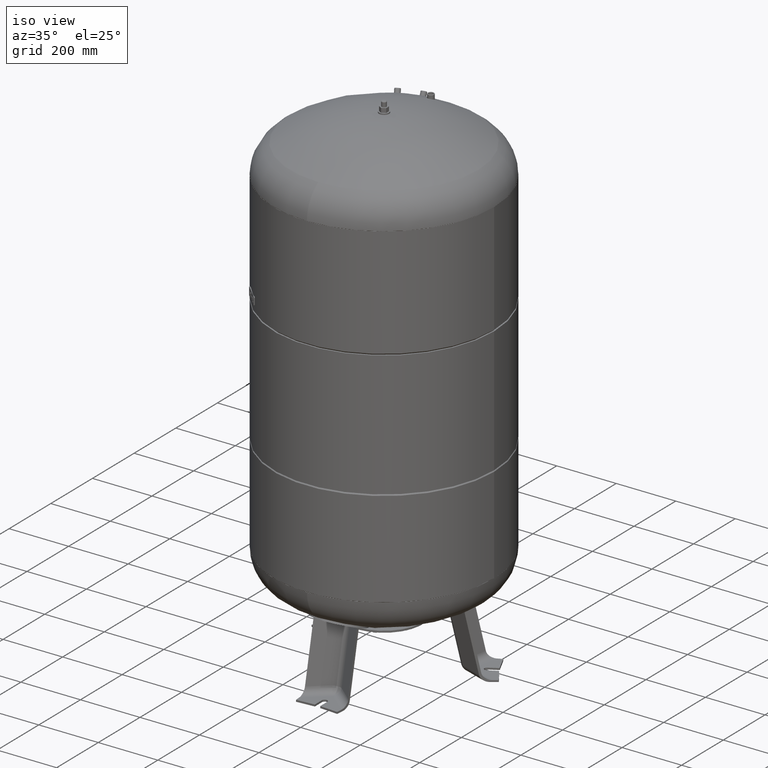
[diagram: clean part render]
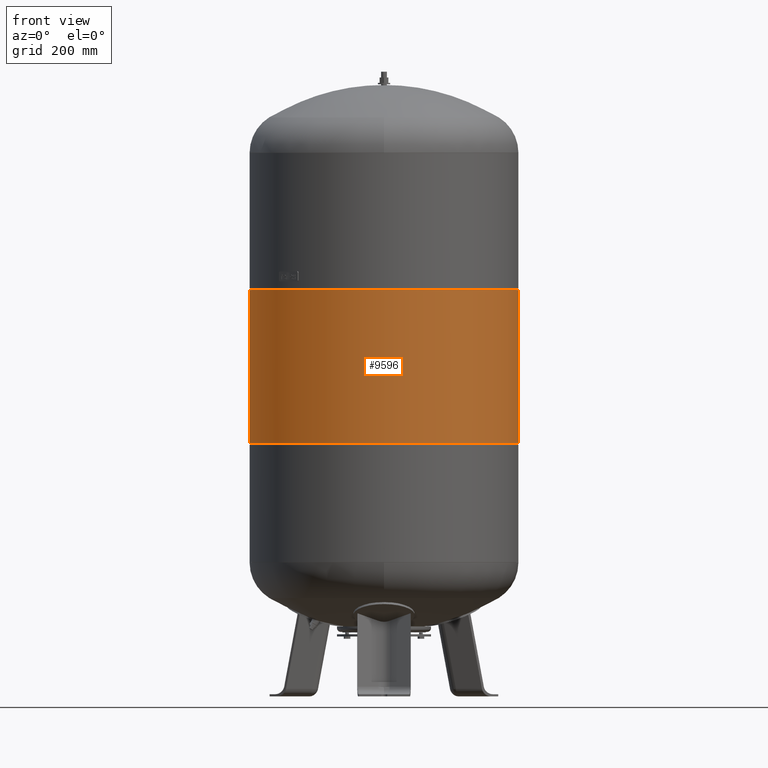
[diagram: tour spotlight — one face highlighted and labeled with its STEP entity id]
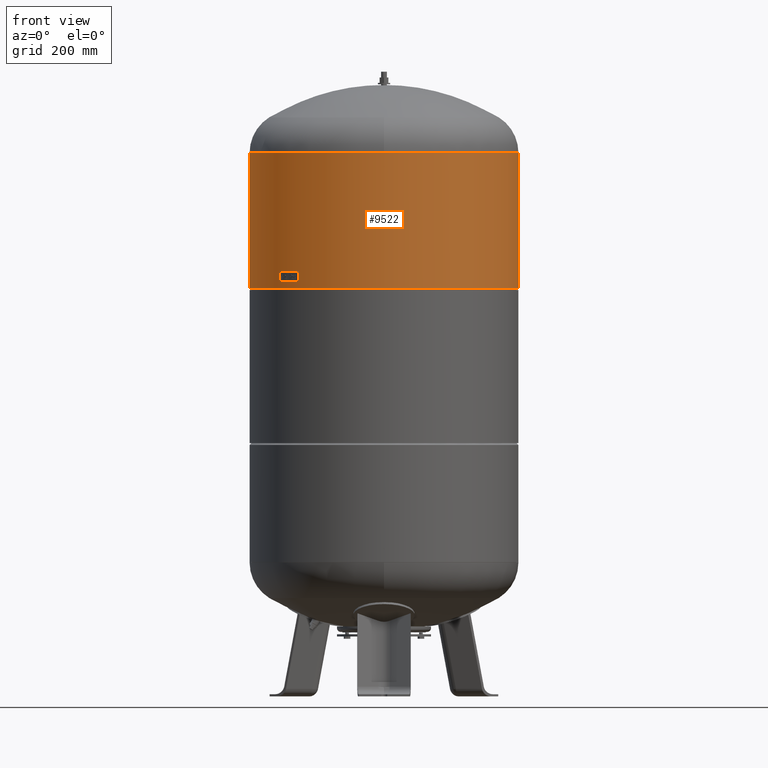
[diagram: tour spotlight — one face highlighted and labeled with its STEP entity id]
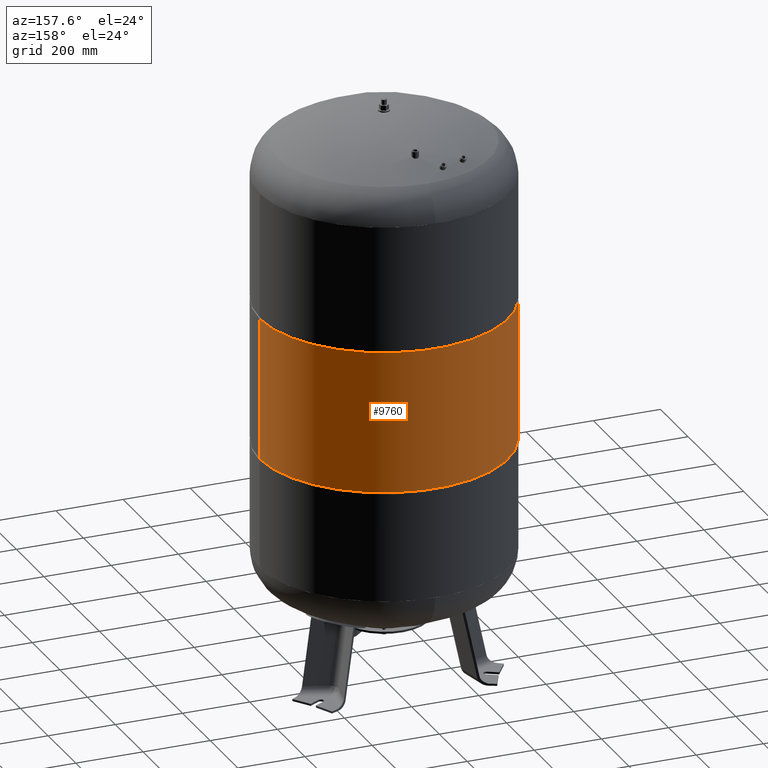
[diagram: tour spotlight — one face highlighted and labeled with its STEP entity id]
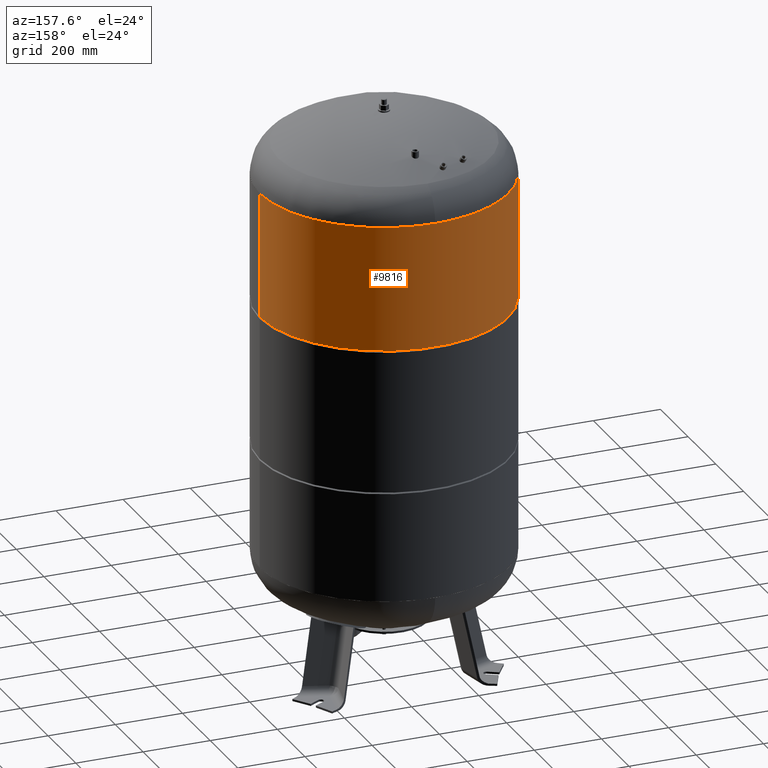
[diagram: tour spotlight — one face highlighted and labeled with its STEP entity id]
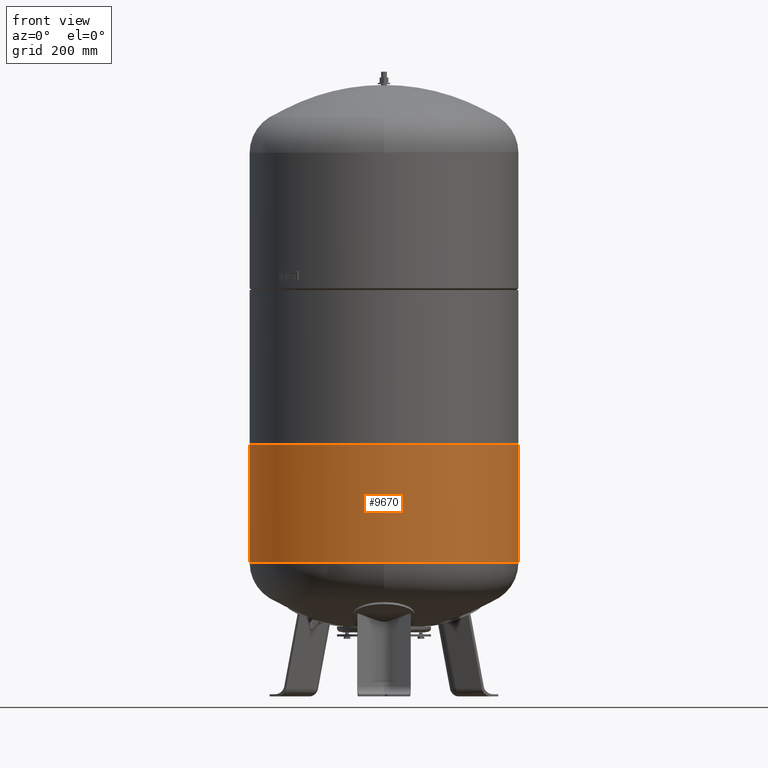
[diagram: tour spotlight — one face highlighted and labeled with its STEP entity id]
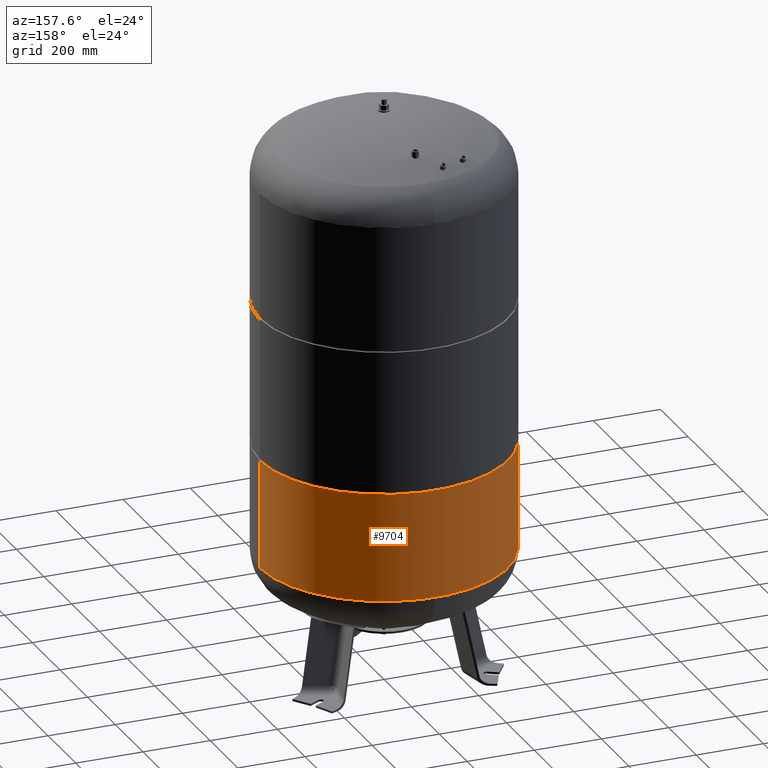
[diagram: tour spotlight — one face highlighted and labeled with its STEP entity id]
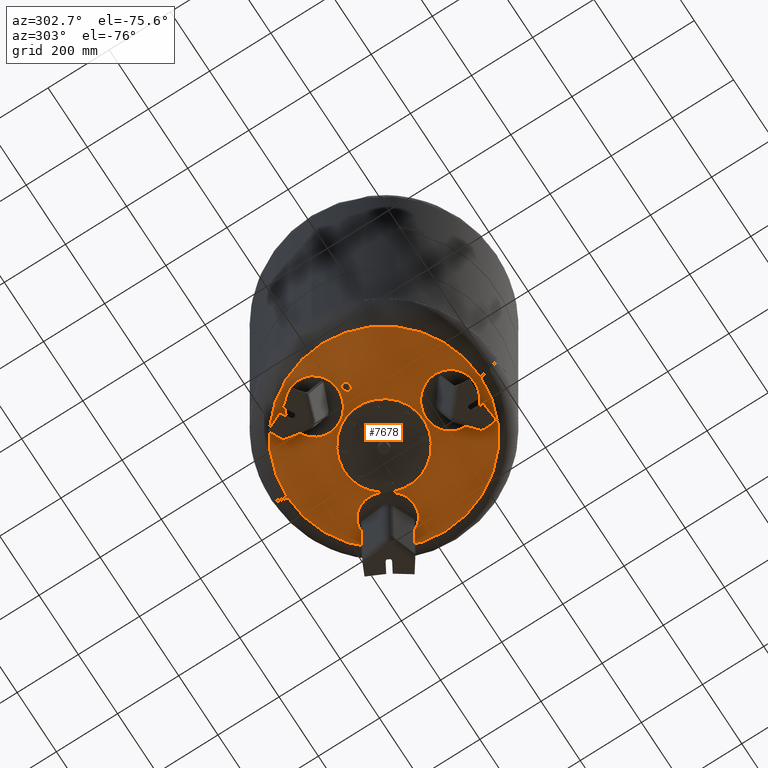
[diagram: tour spotlight — one face highlighted and labeled with its STEP entity id]
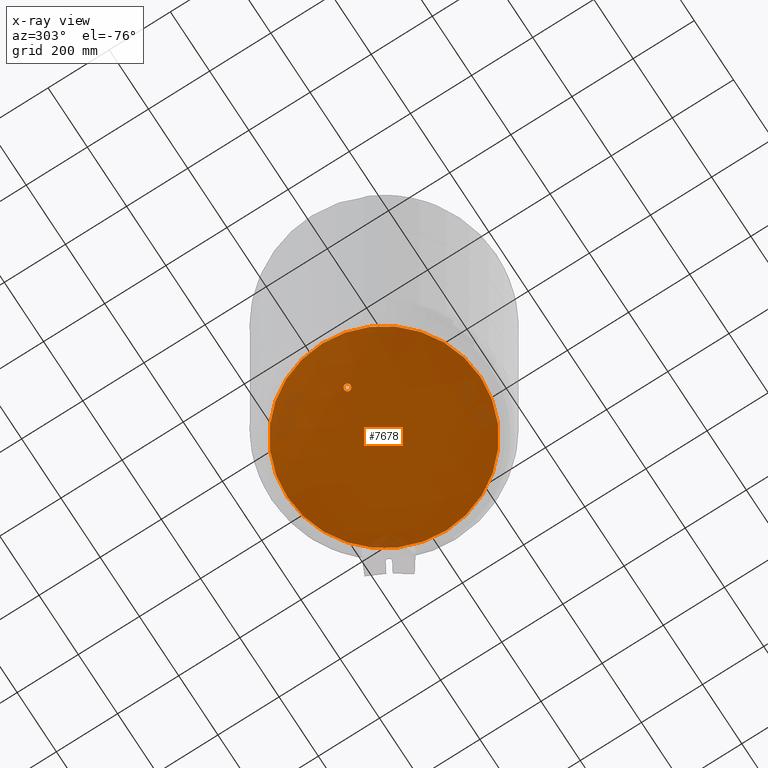
[diagram: x-ray of the same camera — body ghosted, this tour face saturated]
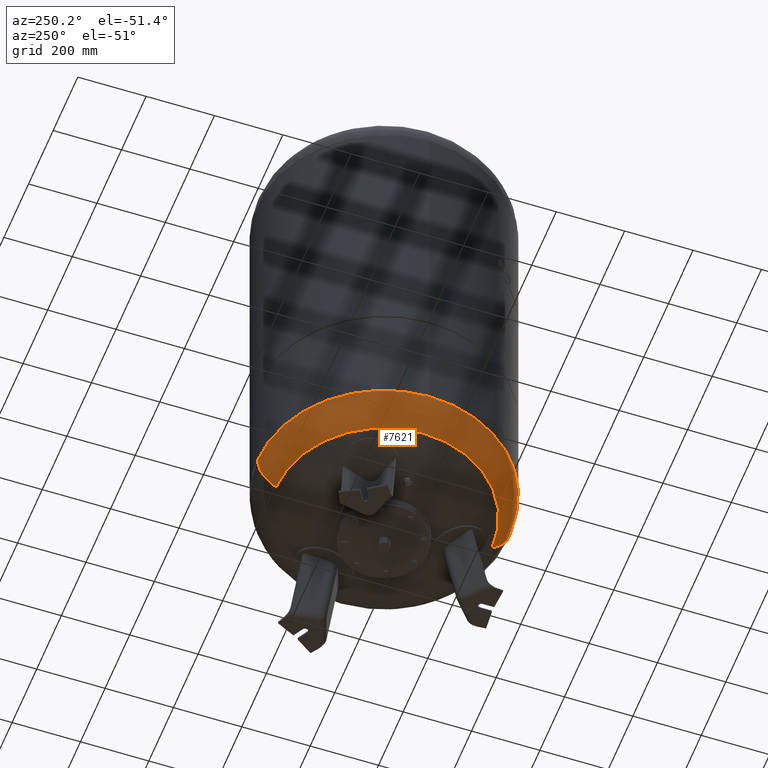
[diagram: tour spotlight — one face highlighted and labeled with its STEP entity id]
A machine part: a face-by-face anatomy tour. The part has 450 B-rep faces; the first image is the clean iso view, then the 8 largest visible faces are spotlighted one at a time (largest first), each with its STEP entity span.

Face 1 — front view, entity #9596. In plain terms, the highlighted cylindrical surface (partial cylindrical patch) has radius 370 mm, axis along (0, 0, 1).
Definition (entity closure, byte-faithful):
#9555=CARTESIAN_POINT('',(-7.289513E-016,0.0,907.885609846773600));
#9556=DIRECTION('',(2.961484E-017,0.0,1.0));
#9557=DIRECTION('',(1.0,0.0,0.0));
#9558=AXIS2_PLACEMENT_3D('',#9555,#9556,#9557);
#9559=CYLINDRICAL_SURFACE('',#9558,370.000000000001140);
#9560=CARTESIAN_POINT('',(369.999999999999720,0.0,1118.666666666666500));
#9561=VERTEX_POINT('',#9560);
#9562=CARTESIAN_POINT('',(370.000000000002610,0.0,697.104553026880580));
#9563=VERTEX_POINT('',#9562);
#9564=CARTESIAN_POINT('',(369.999999999999720,0.0,1118.666666666666500));
#9565=DIRECTION('',(0.0,0.0,-1.0));
#9566=VECTOR('',#9565,421.562113639785930);
#9567=LINE('',#9564,#9566);
#9568=EDGE_CURVE('',#9561,#9563,#9567,.T.);
#9569=ORIENTED_EDGE('',*,*,#9568,.F.);
#9570=CARTESIAN_POINT('',(-370.000000000001140,-4.531044E-014,1118.666666666666500));
#9571=VERTEX_POINT('',#9570);
#9572=CARTESIAN_POINT('',(5.513297E-015,0.0,1118.666666666666500));
#9573=DIRECTION('',(0.0,0.0,1.0));
#9574=DIRECTION('',(1.0,0.0,0.0));
#9575=AXIS2_PLACEMENT_3D('',#9572,#9573,#9574);
#9576=CIRCLE('',#9575,369.999999999999720);
#9577=EDGE_CURVE('',#9571,#9561,#9576,.T.);
#9578=ORIENTED_EDGE('',*,*,#9577,.F.);
#9579=CARTESIAN_POINT('',(-370.000000000001140,-4.531044E-014,697.104553026880470));
#9580=VERTEX_POINT('',#9579);
#9581=CARTESIAN_POINT('',(-370.000000000001140,-4.531044E-014,1118.666666666666500));
#9582=DIRECTION('',(0.0,0.0,-1.0));
#9583=VECTOR('',#9582,421.562113639786050);
#9584=LINE('',#9581,#9583);
#9585=EDGE_CURVE('',#9571,#9580,#9584,.T.);
#9586=ORIENTED_EDGE('',*,*,#9585,.T.);
#9587=CARTESIAN_POINT('',(-6.971199E-015,0.0,697.104553026880470));
#9588=DIRECTION('',(0.0,0.0,1.0));
#9589=DIRECTION('',(1.0,0.0,0.0));
#9590=AXIS2_PLACEMENT_3D('',#9587,#9588,#9589);
#9591=CIRCLE('',#9590,370.000000000002610);
#9592=EDGE_CURVE('',#9580,#9563,#9591,.T.);
#9593=ORIENTED_EDGE('',*,*,#9592,.T.);
#9594=EDGE_LOOP('',(#9569,#9578,#9586,#9593));
#9595=FACE_OUTER_BOUND('',#9594,.T.);
#9596=ADVANCED_FACE('',(#9595),#9559,.T.);

Face 2 — front view, entity #9522. In plain terms, the highlighted cylindrical surface (partial cylindrical patch) has radius 370 mm, axis along (0, 0, 1).
Definition (entity closure, byte-faithful):
#9481=CARTESIAN_POINT('',(1.117467E-014,0.0,1309.833333333333500));
#9482=DIRECTION('',(2.961484E-017,0.0,1.0));
#9483=DIRECTION('',(1.0,0.0,0.0));
#9484=AXIS2_PLACEMENT_3D('',#9481,#9482,#9483);
#9485=CYLINDRICAL_SURFACE('',#9484,369.999999999999890);
#9486=CARTESIAN_POINT('',(370.0,0.0,1496.0));
#9487=VERTEX_POINT('',#9486);
#9488=CARTESIAN_POINT('',(369.999999999999720,0.0,1123.666666666666500));
#9489=VERTEX_POINT('',#9488);
#9490=CARTESIAN_POINT('',(370.0,0.0,1496.0));
#9491=DIRECTION('',(0.0,0.0,-1.0));
#9492=VECTOR('',#9491,372.333333333333480);
#9493=LINE('',#9490,#9492);
#9494=EDGE_CURVE('',#9487,#9489,#9493,.T.);
#9495=ORIENTED_EDGE('',*,*,#9494,.F.);
#9496=CARTESIAN_POINT('',(-369.999999999999890,-4.531044E-014,1496.0));
#9497=VERTEX_POINT('',#9496);
#9498=CARTESIAN_POINT('',(1.668796E-014,0.0,1496.0));
#9499=DIRECTION('',(0.0,0.0,1.0));
#9500=DIRECTION('',(1.0,0.0,0.0));
#9501=AXIS2_PLACEMENT_3D('',#9498,#9499,#9500);
#9502=CIRCLE('',#9501,370.0);
#9503=EDGE_CURVE('',#9497,#9487,#9502,.T.);
#9504=ORIENTED_EDGE('',*,*,#9503,.F.);
#9505=CARTESIAN_POINT('',(-369.999999999999720,-4.531044E-014,1123.666666666666500));
#9506=VERTEX_POINT('',#9505);
#9507=CARTESIAN_POINT('',(-369.999999999999890,-4.531044E-014,1496.0));
#9508=DIRECTION('',(0.0,0.0,-1.0));
#9509=VECTOR('',#9508,372.333333333333480);
#9510=LINE('',#9507,#9509);
#9511=EDGE_CURVE('',#9497,#9506,#9510,.T.);
#9512=ORIENTED_EDGE('',*,*,#9511,.T.);
#9513=CARTESIAN_POINT('',(5.661371E-015,0.0,1123.666666666666500));
#9514=DIRECTION('',(0.0,0.0,1.0));
#9515=DIRECTION('',(1.0,0.0,0.0));
#9516=AXIS2_PLACEMENT_3D('',#9513,#9514,#9515);
#9517=CIRCLE('',#9516,369.999999999999720);
#9518=EDGE_CURVE('',#9506,#9489,#9517,.T.);
#9519=ORIENTED_EDGE('',*,*,#9518,.T.);
#9520=EDGE_LOOP('',(#9495,#9504,#9512,#9519));
#9521=FACE_OUTER_BOUND('',#9520,.T.);
#9522=ADVANCED_FACE('',(#9521),#9485,.T.);

Face 3 — auxiliary view, entity #9760. In plain terms, the highlighted cylindrical surface (partial cylindrical patch) has radius 370 mm, axis along (0, 0, 1).
Definition (entity closure, byte-faithful):
#9560=CARTESIAN_POINT('',(369.999999999999720,0.0,1118.666666666666500));
#9561=VERTEX_POINT('',#9560);
#9562=CARTESIAN_POINT('',(370.000000000002610,0.0,697.104553026880580));
#9563=VERTEX_POINT('',#9562);
#9564=CARTESIAN_POINT('',(369.999999999999720,0.0,1118.666666666666500));
#9565=DIRECTION('',(0.0,0.0,-1.0));
#9566=VECTOR('',#9565,421.562113639785930);
#9567=LINE('',#9564,#9566);
#9568=EDGE_CURVE('',#9561,#9563,#9567,.T.);
#9570=CARTESIAN_POINT('',(-370.000000000001140,-4.531044E-014,1118.666666666666500));
#9571=VERTEX_POINT('',#9570);
#9579=CARTESIAN_POINT('',(-370.000000000001140,-4.531044E-014,697.104553026880470));
#9580=VERTEX_POINT('',#9579);
#9581=CARTESIAN_POINT('',(-370.000000000001140,-4.531044E-014,1118.666666666666500));
#9582=DIRECTION('',(0.0,0.0,-1.0));
#9583=VECTOR('',#9582,421.562113639786050);
#9584=LINE('',#9581,#9583);
#9585=EDGE_CURVE('',#9571,#9580,#9584,.T.);
#9728=CARTESIAN_POINT('',(-6.971199E-015,0.0,697.104553026880470));
#9729=DIRECTION('',(0.0,0.0,1.0));
#9730=DIRECTION('',(1.0,0.0,0.0));
#9731=AXIS2_PLACEMENT_3D('',#9728,#9729,#9730);
#9732=CIRCLE('',#9731,370.000000000002610);
#9733=EDGE_CURVE('',#9563,#9580,#9732,.T.);
#9743=CARTESIAN_POINT('',(-7.289513E-016,0.0,907.885609846773600));
#9744=DIRECTION('',(2.961484E-017,0.0,1.0));
#9745=DIRECTION('',(1.0,0.0,0.0));
#9746=AXIS2_PLACEMENT_3D('',#9743,#9744,#9745);
#9747=CYLINDRICAL_SURFACE('',#9746,370.000000000001140);
#9748=ORIENTED_EDGE('',*,*,#9568,.T.);
#9749=ORIENTED_EDGE('',*,*,#9733,.T.);
#9750=ORIENTED_EDGE('',*,*,#9585,.F.);
#9751=CARTESIAN_POINT('',(5.513297E-015,0.0,1118.666666666666500));
#9752=DIRECTION('',(0.0,0.0,1.0));
#9753=DIRECTION('',(1.0,0.0,0.0));
#9754=AXIS2_PLACEMENT_3D('',#9751,#9752,#9753);
#9755=CIRCLE('',#9754,369.999999999999720);
#9756=EDGE_CURVE('',#9561,#9571,#9755,.T.);
#9757=ORIENTED_EDGE('',*,*,#9756,.F.);
#9758=EDGE_LOOP('',(#9748,#9749,#9750,#9757));
#9759=FACE_OUTER_BOUND('',#9758,.T.);
#9760=ADVANCED_FACE('',(#9759),#9747,.T.);

Face 4 — auxiliary view, entity #9816. In plain terms, the highlighted cylindrical surface (partial cylindrical patch) has radius 370 mm, axis along (0, 0, 1).
Definition (entity closure, byte-faithful):
#9486=CARTESIAN_POINT('',(370.0,0.0,1496.0));
#9487=VERTEX_POINT('',#9486);
#9488=CARTESIAN_POINT('',(369.999999999999720,0.0,1123.666666666666500));
#9489=VERTEX_POINT('',#9488);
#9490=CARTESIAN_POINT('',(370.0,0.0,1496.0));
#9491=DIRECTION('',(0.0,0.0,-1.0));
#9492=VECTOR('',#9491,372.333333333333480);
#9493=LINE('',#9490,#9492);
#9494=EDGE_CURVE('',#9487,#9489,#9493,.T.);
#9496=CARTESIAN_POINT('',(-369.999999999999890,-4.531044E-014,1496.0));
#9497=VERTEX_POINT('',#9496);
#9505=CARTESIAN_POINT('',(-369.999999999999720,-4.531044E-014,1123.666666666666500));
#9506=VERTEX_POINT('',#9505);
#9507=CARTESIAN_POINT('',(-369.999999999999890,-4.531044E-014,1496.0));
#9508=DIRECTION('',(0.0,0.0,-1.0));
#9509=VECTOR('',#9508,372.333333333333480);
#9510=LINE('',#9507,#9509);
#9511=EDGE_CURVE('',#9497,#9506,#9510,.T.);
#9789=CARTESIAN_POINT('',(5.661371E-015,0.0,1123.666666666666500));
#9790=DIRECTION('',(0.0,0.0,1.0));
#9791=DIRECTION('',(1.0,0.0,0.0));
#9792=AXIS2_PLACEMENT_3D('',#9789,#9790,#9791);
#9793=CIRCLE('',#9792,369.999999999999720);
#9794=EDGE_CURVE('',#9489,#9506,#9793,.T.);
#9799=CARTESIAN_POINT('',(1.117467E-014,0.0,1309.833333333333500));
#9800=DIRECTION('',(2.961484E-017,0.0,1.0));
#9801=DIRECTION('',(1.0,0.0,0.0));
#9802=AXIS2_PLACEMENT_3D('',#9799,#9800,#9801);
#9803=CYLINDRICAL_SURFACE('',#9802,369.999999999999890);
#9804=ORIENTED_EDGE('',*,*,#9494,.T.);
#9805=ORIENTED_EDGE('',*,*,#9794,.T.);
#9806=ORIENTED_EDGE('',*,*,#9511,.F.);
#9807=CARTESIAN_POINT('',(1.668796E-014,0.0,1496.0));
#9808=DIRECTION('',(0.0,0.0,1.0));
#9809=DIRECTION('',(1.0,0.0,0.0));
#9810=AXIS2_PLACEMENT_3D('',#9807,#9808,#9809);
#9811=CIRCLE('',#9810,370.0);
#9812=EDGE_CURVE('',#9487,#9497,#9811,.T.);
#9813=ORIENTED_EDGE('',*,*,#9812,.F.);
#9814=EDGE_LOOP('',(#9804,#9805,#9806,#9813));
#9815=FACE_OUTER_BOUND('',#9814,.T.);
#9816=ADVANCED_FACE('',(#9815),#9803,.T.);

Face 5 — front view, entity #9670. In plain terms, the highlighted cylindrical surface (partial cylindrical patch) has radius 370 mm, axis along (0, 0, 1).
Definition (entity closure, byte-faithful):
#9604=CARTESIAN_POINT('',(369.999999999997730,0.0,692.104553026880470));
#9605=VERTEX_POINT('',#9604);
#9621=CARTESIAN_POINT('',(-369.999999999998860,-4.531044E-014,692.104553026880470));
#9622=VERTEX_POINT('',#9621);
#9629=CARTESIAN_POINT('',(-7.119274E-015,0.0,692.104553026880470));
#9630=DIRECTION('',(0.0,0.0,1.0));
#9631=DIRECTION('',(1.0,0.0,0.0));
#9632=AXIS2_PLACEMENT_3D('',#9629,#9630,#9631);
#9633=CIRCLE('',#9632,369.999999999997730);
#9634=EDGE_CURVE('',#9622,#9605,#9633,.T.);
#9639=CARTESIAN_POINT('',(-1.190362E-014,0.0,530.552276513440120));
#9640=DIRECTION('',(2.961484E-017,0.0,1.0));
#9641=DIRECTION('',(1.0,0.0,0.0));
#9642=AXIS2_PLACEMENT_3D('',#9639,#9640,#9641);
#9643=CYLINDRICAL_SURFACE('',#9642,369.999999999998860);
#9644=CARTESIAN_POINT('',(369.999999999999940,0.0,369.0));
#9645=VERTEX_POINT('',#9644);
#9646=CARTESIAN_POINT('',(369.999999999997730,0.0,692.104553026880470));
#9647=DIRECTION('',(0.0,0.0,-1.0));
#9648=VECTOR('',#9647,323.104553026880470);
#9649=LINE('',#9646,#9648);
#9650=EDGE_CURVE('',#9605,#9645,#9649,.T.);
#9651=ORIENTED_EDGE('',*,*,#9650,.F.);
#9652=ORIENTED_EDGE('',*,*,#9634,.F.);
#9653=CARTESIAN_POINT('',(-369.999999999998860,-4.531044E-014,369.0));
#9654=VERTEX_POINT('',#9653);
#9655=CARTESIAN_POINT('',(-369.999999999998860,-4.531044E-014,692.104553026880470));
#9656=DIRECTION('',(0.0,0.0,-1.0));
#9657=VECTOR('',#9656,323.104553026880470);
#9658=LINE('',#9655,#9657);
#9659=EDGE_CURVE('',#9622,#9654,#9658,.T.);
#9660=ORIENTED_EDGE('',*,*,#9659,.T.);
#9661=CARTESIAN_POINT('',(-1.668796E-014,0.0,369.0));
#9662=DIRECTION('',(0.0,0.0,1.0));
#9663=DIRECTION('',(1.0,0.0,0.0));
#9664=AXIS2_PLACEMENT_3D('',#9661,#9662,#9663);
#9665=CIRCLE('',#9664,369.999999999999940);
#9666=EDGE_CURVE('',#9654,#9645,#9665,.T.);
#9667=ORIENTED_EDGE('',*,*,#9666,.T.);
#9668=EDGE_LOOP('',(#9651,#9652,#9660,#9667));
#9669=FACE_OUTER_BOUND('',#9668,.T.);
#9670=ADVANCED_FACE('',(#9669),#9643,.T.);

Face 6 — auxiliary view, entity #9704. In plain terms, the highlighted cylindrical surface (partial cylindrical patch) has radius 370 mm, axis along (0, 0, 1).
Definition (entity closure, byte-faithful):
#9604=CARTESIAN_POINT('',(369.999999999997730,0.0,692.104553026880470));
#9605=VERTEX_POINT('',#9604);
#9621=CARTESIAN_POINT('',(-369.999999999998860,-4.531044E-014,692.104553026880470));
#9622=VERTEX_POINT('',#9621);
#9644=CARTESIAN_POINT('',(369.999999999999940,0.0,369.0));
#9645=VERTEX_POINT('',#9644);
#9646=CARTESIAN_POINT('',(369.999999999997730,0.0,692.104553026880470));
#9647=DIRECTION('',(0.0,0.0,-1.0));
#9648=VECTOR('',#9647,323.104553026880470);
#9649=LINE('',#9646,#9648);
#9650=EDGE_CURVE('',#9605,#9645,#9649,.T.);
#9653=CARTESIAN_POINT('',(-369.999999999998860,-4.531044E-014,369.0));
#9654=VERTEX_POINT('',#9653);
#9655=CARTESIAN_POINT('',(-369.999999999998860,-4.531044E-014,692.104553026880470));
#9656=DIRECTION('',(0.0,0.0,-1.0));
#9657=VECTOR('',#9656,323.104553026880470);
#9658=LINE('',#9655,#9657);
#9659=EDGE_CURVE('',#9622,#9654,#9658,.T.);
#9676=CARTESIAN_POINT('',(-1.668796E-014,0.0,369.0));
#9677=DIRECTION('',(0.0,0.0,1.0));
#9678=DIRECTION('',(1.0,0.0,0.0));
#9679=AXIS2_PLACEMENT_3D('',#9676,#9677,#9678);
#9680=CIRCLE('',#9679,369.999999999999940);
#9681=EDGE_CURVE('',#9645,#9654,#9680,.T.);
#9687=CARTESIAN_POINT('',(-1.190362E-014,0.0,530.552276513440120));
#9688=DIRECTION('',(2.961484E-017,0.0,1.0));
#9689=DIRECTION('',(1.0,0.0,0.0));
#9690=AXIS2_PLACEMENT_3D('',#9687,#9688,#9689);
#9691=CYLINDRICAL_SURFACE('',#9690,369.999999999998860);
#9692=ORIENTED_EDGE('',*,*,#9650,.T.);
#9693=ORIENTED_EDGE('',*,*,#9681,.T.);
#9694=ORIENTED_EDGE('',*,*,#9659,.F.);
#9695=CARTESIAN_POINT('',(-7.119274E-015,0.0,692.104553026880470));
#9696=DIRECTION('',(0.0,0.0,1.0));
#9697=DIRECTION('',(1.0,0.0,0.0));
#9698=AXIS2_PLACEMENT_3D('',#9695,#9696,#9697);
#9699=CIRCLE('',#9698,369.999999999997730);
#9700=EDGE_CURVE('',#9605,#9622,#9699,.T.);
#9701=ORIENTED_EDGE('',*,*,#9700,.F.);
#9702=EDGE_LOOP('',(#9692,#9693,#9694,#9701));
#9703=FACE_OUTER_BOUND('',#9702,.T.);
#9704=ADVANCED_FACE('',(#9703),#9691,.T.);

Face 7 — auxiliary view, entity #7678. An x-ray twin of the same camera follows (body ghosted, this face saturated) — the face is partly hidden behind the body. In plain terms, the highlighted spherical surface has radius 594 mm.
Definition (entity closure, byte-faithful):
#7064=CARTESIAN_POINT('',(-186.475898480732810,10.649999999999997,210.130053305016530));
#7065=VERTEX_POINT('',#7064);
#7081=CARTESIAN_POINT('',(-186.475898480732720,-10.650000000000007,210.130053305016530));
#7082=VERTEX_POINT('',#7081);
#7089=CARTESIAN_POINT('',(-186.475898480732720,-10.650000000000007,210.130053305016530));
#7090=CARTESIAN_POINT('',(-187.124860883245160,-10.650000000000007,210.344669898431450));
#7091=CARTESIAN_POINT('',(-187.796419153283950,-10.585897257729055,210.566811580146290));
#7092=CARTESIAN_POINT('',(-189.133346046879210,-10.315197843523979,211.009157990052330));
#7093=CARTESIAN_POINT('',(-189.798725137413130,-10.108658305297702,211.229366045118810));
#7094=CARTESIAN_POINT('',(-191.076019149340080,-9.561247992594435,211.652185101280420));
#7095=CARTESIAN_POINT('',(-191.688913967560210,-9.219951288830538,211.855120108877880));
#7096=CARTESIAN_POINT('',(-192.823245490695570,-8.429330288861298,212.230780821028390));
#7097=CARTESIAN_POINT('',(-193.344645356914100,-7.979947097098358,212.403493806613260));
#7098=CARTESIAN_POINT('',(-194.257487015804490,-7.030422985901732,212.705916681357510));
#7099=CARTESIAN_POINT('',(-194.682073986333620,-6.499959822582402,212.846606772842930));
#7100=CARTESIAN_POINT('',(-195.431782062258290,-5.343773011801500,213.095059043302630));
#7101=CARTESIAN_POINT('',(-195.756940428860790,-4.718076059811918,213.202833012730140));
#7102=CARTESIAN_POINT('',(-196.279773371397030,-3.411750880367439,213.376139475025640));
#7103=CARTESIAN_POINT('',(-196.477873122917200,-2.730044237096569,213.441812530799580));
#7104=CARTESIAN_POINT('',(-196.737912556741290,-1.358119939518624,213.528021592298700));
#7105=CARTESIAN_POINT('',(-196.799795716716970,-0.667890388706037,213.548538760171940));
#7106=CARTESIAN_POINT('',(-196.799795716717030,0.667890388705907,213.548538760171940));
#7107=CARTESIAN_POINT('',(-196.737912556741290,1.358119939518490,213.528021592298700));
#7108=CARTESIAN_POINT('',(-196.477873122917260,2.730044237096433,213.441812530799610));
#7109=CARTESIAN_POINT('',(-196.279773371397030,3.411750880367301,213.376139475025750));
#7110=CARTESIAN_POINT('',(-195.756940428860790,4.718076059811795,213.202833012730200));
#7111=CARTESIAN_POINT('',(-195.431782062258380,5.343773011801374,213.095059043302630));
#7112=CARTESIAN_POINT('',(-194.682073986333710,6.499959822582289,212.846606772842900));
#7113=CARTESIAN_POINT('',(-194.257487015804540,7.030422985901635,212.705916681357510));
#7114=CARTESIAN_POINT('',(-193.344645356914100,7.979947097098268,212.403493806613260));
#7115=CARTESIAN_POINT('',(-192.823245490695570,8.429330288861236,212.230780821028500));
#7116=CARTESIAN_POINT('',(-191.688913967560240,9.219951288830469,211.855120108878000));
#7117=CARTESIAN_POINT('',(-191.076019149340110,9.561247992594385,211.652185101280510));
#7118=CARTESIAN_POINT('',(-189.798725137413190,10.108658305297656,211.229366045118920));
#7119=CARTESIAN_POINT('',(-189.133346046879300,10.315197843523951,211.009157990052300));
#7120=CARTESIAN_POINT('',(-187.796419153284030,10.585897257729030,210.566811580146290));
#7121=CARTESIAN_POINT('',(-187.124860883245220,10.649999999999993,210.344669898431500));
#7122=CARTESIAN_POINT('',(-186.475898480732780,10.649999999999997,210.130053305016590));
#7123=B_SPLINE_CURVE_WITH_KNOTS('',3,(#7089,#7090,#7091,#7092,#7093,#7094,#7095,#7096,#7097,#7098,#7099,#7100,#7101,#7102,#7103,#7104,#7105,#7106,#7107,#7108,#7109,#7110,#7111,#7112,#7113,#7114,#7115,#7116,#7117,#7118,#7119,#7120,#7121,#7122),.UNSPECIFIED.,.F.,.U.,(4,2,2,2,2,2,2,2,2,2,2,2,2,2,2,2,4),(32.436275591715777,34.486863882522528,36.537452173329278,38.588040464136029,40.638628754942779,42.642299921060683,44.645971087178594,46.649642253296506,48.653313419414417,50.656984585532335,52.660655751650253,54.664326917768172,56.667998083886090,58.718586374692833,60.769174665499570,62.819762956306306,64.870351247113049),.UNSPECIFIED.);
#7124=EDGE_CURVE('',#7082,#7065,#7123,.T.);
#7577=CARTESIAN_POINT('',(0.0,-315.931034482758610,270.985505725079410));
#7578=VERTEX_POINT('',#7577);
#7594=CARTESIAN_POINT('',(-3.868912E-014,315.931034482758610,270.985505725079630));
#7595=VERTEX_POINT('',#7594);
#7603=CARTESIAN_POINT('',(-315.931034482758610,-1.671377E-014,270.985505725079520));
#7604=VERTEX_POINT('',#7603);
#7605=CARTESIAN_POINT('',(0.0,-1.671377E-014,270.985505725079520));
#7606=DIRECTION('',(0.0,0.0,1.0));
#7607=DIRECTION('',(-1.0,0.0,0.0));
#7608=AXIS2_PLACEMENT_3D('',#7605,#7606,#7607);
#7609=CIRCLE('',#7608,315.931034482758610);
#7610=EDGE_CURVE('',#7595,#7604,#7609,.T.);
#7612=CARTESIAN_POINT('',(0.0,-1.671377E-014,270.985505725079520));
#7613=DIRECTION('',(0.0,0.0,1.0));
#7614=DIRECTION('',(-1.0,0.0,0.0));
#7615=AXIS2_PLACEMENT_3D('',#7612,#7613,#7614);
#7616=CIRCLE('',#7615,315.931034482758610);
#7617=EDGE_CURVE('',#7604,#7578,#7616,.T.);
#7622=CARTESIAN_POINT('',(0.0,-1.091160E-013,774.0));
#7623=DIRECTION('',(0.0,-1.0,0.0));
#7624=DIRECTION('',(1.0,0.0,0.0));
#7625=AXIS2_PLACEMENT_3D('',#7622,#7623,#7624);
#7626=SPHERICAL_SURFACE('',#7625,594.0);
#7627=ORIENTED_EDGE('',*,*,#7617,.F.);
#7628=ORIENTED_EDGE('',*,*,#7610,.F.);
#7629=CARTESIAN_POINT('',(0.0,-1.671377E-014,270.985505725079520));
#7630=DIRECTION('',(0.0,0.0,1.0));
#7631=DIRECTION('',(-1.0,0.0,0.0));
#7632=AXIS2_PLACEMENT_3D('',#7629,#7630,#7631);
#7633=CIRCLE('',#7632,315.931034482758610);
#7634=EDGE_CURVE('',#7578,#7595,#7633,.T.);
#7635=ORIENTED_EDGE('',*,*,#7634,.F.);
#7636=EDGE_LOOP('',(#7627,#7628,#7635));
#7637=FACE_OUTER_BOUND('',#7636,.T.);
#7638=CARTESIAN_POINT('',(-186.475898480732810,10.649999999999997,210.130053305016530));
#7639=CARTESIAN_POINT('',(-185.826857262622610,10.650000000000000,209.915410646709430));
#7640=CARTESIAN_POINT('',(-185.155189002635550,10.585881941269065,209.693337541784080));
#7641=CARTESIAN_POINT('',(-183.817972456978420,10.315140907270656,209.251325742436390));
#7642=CARTESIAN_POINT('',(-183.152413716095850,10.108575420795347,209.031383467034770));
#7643=CARTESIAN_POINT('',(-181.874702958794050,9.561115962779446,208.609245654441850));
#7644=CARTESIAN_POINT('',(-181.261571551697190,9.219796601847493,208.406726181735730));
#7645=CARTESIAN_POINT('',(-180.126739662913390,8.429135555707340,208.031961422356400));
#7646=CARTESIAN_POINT('',(-179.605076390444790,7.979734889042932,207.859727901417900));
#7647=CARTESIAN_POINT('',(-178.691777632374340,7.030223425909293,207.558237190891700));
#7648=CARTESIAN_POINT('',(-178.266967031903930,6.499795006664646,207.418027744112120));
#7649=CARTESIAN_POINT('',(-177.516820493067400,5.343673314597983,207.170472052846210));
#7650=CARTESIAN_POINT('',(-177.191447818701590,4.718006595743994,207.063113117552920));
#7651=CARTESIAN_POINT('',(-176.668249033123230,3.411728432436548,206.890493496221320));
#7652=CARTESIAN_POINT('',(-176.469997721336170,2.730038109064847,206.825092141960570));
#7653=CARTESIAN_POINT('',(-176.209754193452710,1.358129372843327,206.739242218086760));
#7654=CARTESIAN_POINT('',(-176.147818686771070,0.667899039003240,206.718812252783660));
#7655=CARTESIAN_POINT('',(-176.147818686771020,-0.667899039003132,206.718812252783660));
#7656=CARTESIAN_POINT('',(-176.209754193452740,-1.358129372843216,206.739242218086760));
#7657=CARTESIAN_POINT('',(-176.469997721336140,-2.730038109064747,206.825092141960570));
#7658=CARTESIAN_POINT('',(-176.668249033123170,-3.411728432436458,206.890493496221320));
#7659=CARTESIAN_POINT('',(-177.191447818701530,-4.718006595743912,207.063113117552890));
#7660=CARTESIAN_POINT('',(-177.516820493067370,-5.343673314597923,207.170472052846180));
#7661=CARTESIAN_POINT('',(-178.266967031903850,-6.499795006664585,207.418027744112120));
#7662=CARTESIAN_POINT('',(-178.691777632374230,-7.030223425909218,207.558237190891700));
#7663=CARTESIAN_POINT('',(-179.605076390444710,-7.979734889042868,207.859727901417900));
#7664=CARTESIAN_POINT('',(-180.126739662913250,-8.429135555707251,208.031961422356290));
#7665=CARTESIAN_POINT('',(-181.261571551697070,-9.219796601847428,208.406726181735620));
#7666=CARTESIAN_POINT('',(-181.874702958793990,-9.561115962779397,208.609245654441740));
#7667=CARTESIAN_POINT('',(-183.152413716095790,-10.108575420795315,209.031383467034660));
#7668=CARTESIAN_POINT('',(-183.817972456978310,-10.315140907270647,209.251325742436390));
#7669=CARTESIAN_POINT('',(-185.155189002635440,-10.585881941269067,209.693337541784080));
#7670=CARTESIAN_POINT('',(-185.826857262622550,-10.650000000000007,209.915410646709380));
#7671=CARTESIAN_POINT('',(-186.475898480732720,-10.650000000000007,210.130053305016530));
#7672=B_SPLINE_CURVE_WITH_KNOTS('',3,(#7638,#7639,#7640,#7641,#7642,#7643,#7644,#7645,#7646,#7647,#7648,#7649,#7650,#7651,#7652,#7653,#7654,#7655,#7656,#7657,#7658,#7659,#7660,#7661,#7662,#7663,#7664,#7665,#7666,#7667,#7668,#7669,#7670,#7671),.UNSPECIFIED.,.F.,.U.,(4,2,2,2,2,2,2,2,2,2,2,2,2,2,2,2,4),(0.0,2.050837331954914,4.101674663909828,6.152511995864741,8.203349327819655,10.207046444829214,12.210743561838770,14.214440678848327,16.218137795857885,18.221834912867443,20.225532029877002,22.229229146886560,24.232926263896118,26.283763595851035,28.334600927805948,30.385438259760861,32.436275591715777),.UNSPECIFIED.);
#7673=EDGE_CURVE('',#7065,#7082,#7672,.T.);
#7674=ORIENTED_EDGE('',*,*,#7673,.F.);
#7675=ORIENTED_EDGE('',*,*,#7124,.F.);
#7676=EDGE_LOOP('',(#7674,#7675));
#7677=FACE_BOUND('',#7676,.T.);
#7678=ADVANCED_FACE('',(#7637,#7677),#7626,.T.);

Face 8 — auxiliary view, entity #7621. In plain terms, the highlighted toroidal blend (fillet) surface has major radius 254.5 mm and minor (blend) radius 115.5 mm.
Definition (entity closure, byte-faithful):
#7526=CARTESIAN_POINT('',(-370.0,-3.468087E-014,368.793879611869560));
#7527=VERTEX_POINT('',#7526);
#7551=CARTESIAN_POINT('',(-4.531044E-014,369.999999999999940,368.793879611869610));
#7552=VERTEX_POINT('',#7551);
#7560=CARTESIAN_POINT('',(0.0,-3.468087E-014,368.793879611869560));
#7561=DIRECTION('',(0.0,0.0,1.0));
#7562=DIRECTION('',(-1.0,0.0,0.0));
#7563=AXIS2_PLACEMENT_3D('',#7560,#7561,#7562);
#7564=CIRCLE('',#7563,370.0);
#7565=EDGE_CURVE('',#7552,#7527,#7564,.T.);
#7570=CARTESIAN_POINT('',(0.0,-3.468087E-014,368.793879611869560));
#7571=DIRECTION('',(0.0,-1.836970E-016,1.0));
#7572=DIRECTION('',(0.0,-1.0,0.0));
#7573=AXIS2_PLACEMENT_3D('',#7570,#7571,#7572);
#7574=TOROIDAL_SURFACE('',#7573,254.500000000000030,115.500000000000000);
#7575=CARTESIAN_POINT('',(0.0,-370.000000000000060,368.793879611869500));
#7576=VERTEX_POINT('',#7575);
#7577=CARTESIAN_POINT('',(0.0,-315.931034482758610,270.985505725079410));
#7578=VERTEX_POINT('',#7577);
#7579=CARTESIAN_POINT('',(0.0,-254.500000000000060,368.793879611869500));
#7580=DIRECTION('',(1.0,0.0,0.0));
#7581=DIRECTION('',(0.0,-1.0,0.0));
#7582=AXIS2_PLACEMENT_3D('',#7579,#7580,#7581);
#7583=CIRCLE('',#7582,115.500000000000000);
#7584=EDGE_CURVE('',#7576,#7578,#7583,.T.);
#7585=ORIENTED_EDGE('',*,*,#7584,.F.);
#7586=CARTESIAN_POINT('',(0.0,-3.468087E-014,368.793879611869560));
#7587=DIRECTION('',(0.0,0.0,1.0));
#7588=DIRECTION('',(-1.0,0.0,0.0));
#7589=AXIS2_PLACEMENT_3D('',#7586,#7587,#7588);
#7590=CIRCLE('',#7589,370.0);
#7591=EDGE_CURVE('',#7527,#7576,#7590,.T.);
#7592=ORIENTED_EDGE('',*,*,#7591,.F.);
#7593=ORIENTED_EDGE('',*,*,#7565,.F.);
#7594=CARTESIAN_POINT('',(-3.868912E-014,315.931034482758610,270.985505725079630));
#7595=VERTEX_POINT('',#7594);
#7596=CARTESIAN_POINT('',(-3.116623E-014,254.500000000000000,368.793879611869610));
#7597=DIRECTION('',(-1.0,0.0,0.0));
#7598=DIRECTION('',(0.0,1.0,0.0));
#7599=AXIS2_PLACEMENT_3D('',#7596,#7597,#7598);
#7600=CIRCLE('',#7599,115.500000000000000);
#7601=EDGE_CURVE('',#7552,#7595,#7600,.T.);
#7602=ORIENTED_EDGE('',*,*,#7601,.T.);
#7603=CARTESIAN_POINT('',(-315.931034482758610,-1.671377E-014,270.985505725079520));
#7604=VERTEX_POINT('',#7603);
#7605=CARTESIAN_POINT('',(0.0,-1.671377E-014,270.985505725079520));
#7606=DIRECTION('',(0.0,0.0,1.0));
#7607=DIRECTION('',(-1.0,0.0,0.0));
#7608=AXIS2_PLACEMENT_3D('',#7605,#7606,#7607);
#7609=CIRCLE('',#7608,315.931034482758610);
#7610=EDGE_CURVE('',#7595,#7604,#7609,.T.);
#7611=ORIENTED_EDGE('',*,*,#7610,.T.);
#7612=CARTESIAN_POINT('',(0.0,-1.671377E-014,270.985505725079520));
#7613=DIRECTION('',(0.0,0.0,1.0));
#7614=DIRECTION('',(-1.0,0.0,0.0));
#7615=AXIS2_PLACEMENT_3D('',#7612,#7613,#7614);
#7616=CIRCLE('',#7615,315.931034482758610);
#7617=EDGE_CURVE('',#7604,#7578,#7616,.T.);
#7618=ORIENTED_EDGE('',*,*,#7617,.T.);
#7619=EDGE_LOOP('',(#7585,#7592,#7593,#7602,#7611,#7618));
#7620=FACE_OUTER_BOUND('',#7619,.T.);
#7621=ADVANCED_FACE('',(#7620),#7574,.T.);